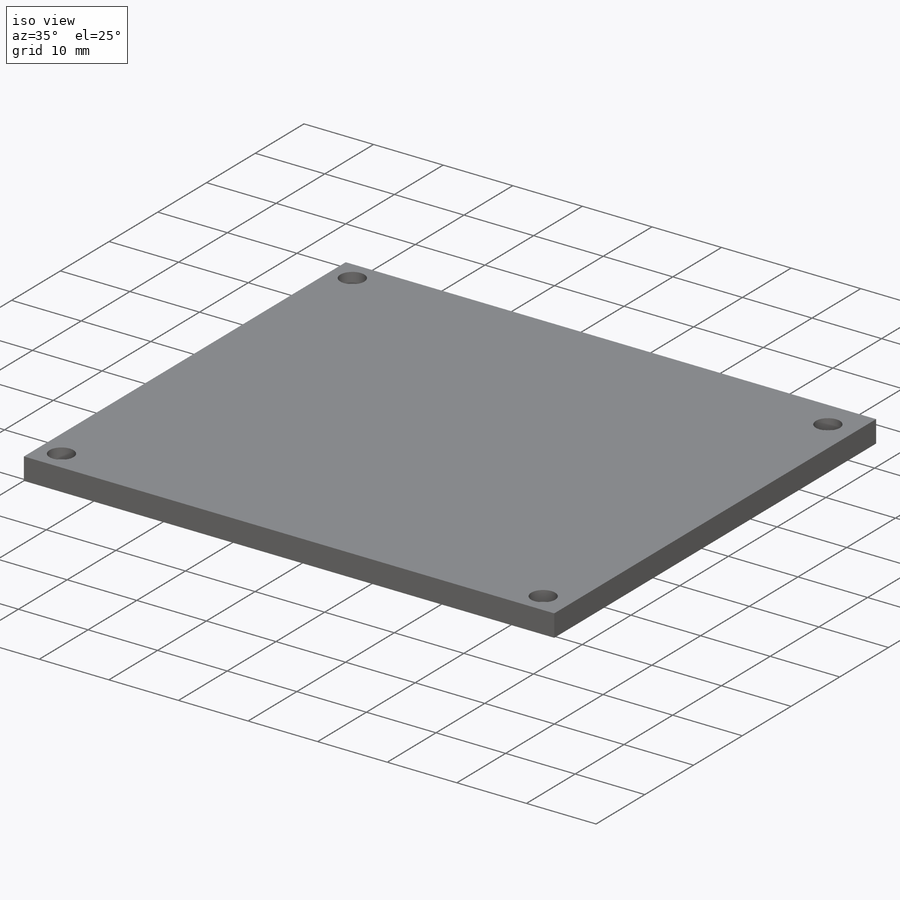
[diagram: iso view]
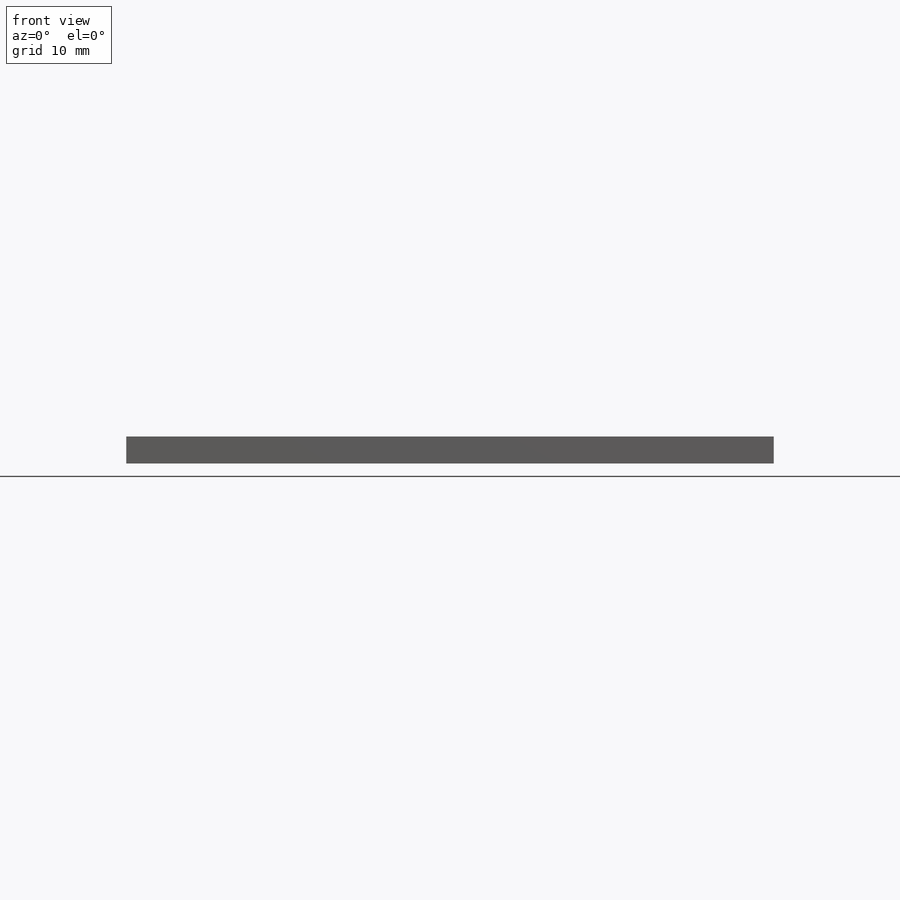
[diagram: front view]
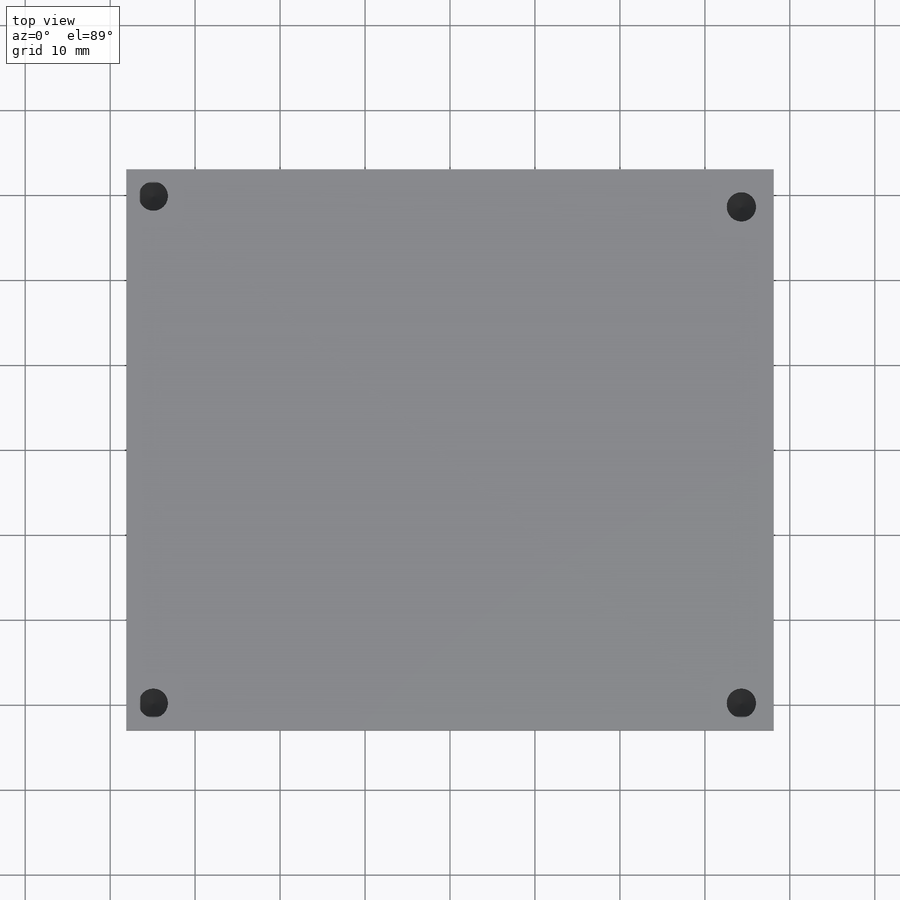
[diagram: top view]
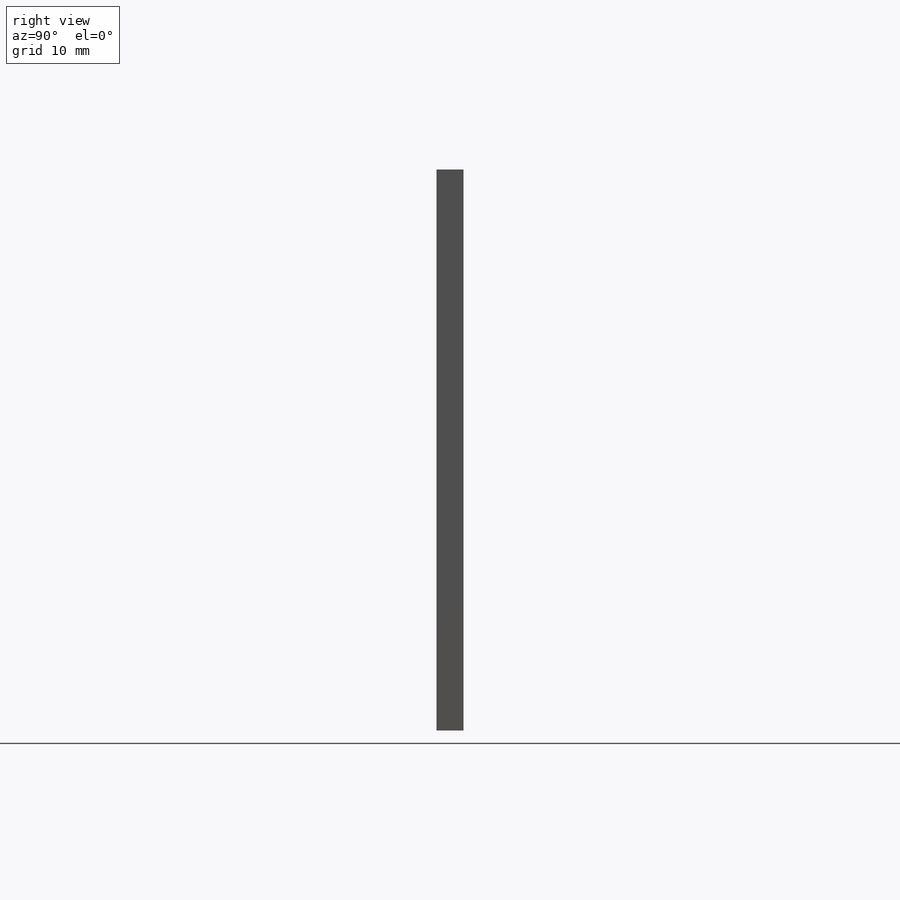
[diagram: right view]
SOLIDWORKS PART (.sldprt)
format: sldprt  version: not decoded by parser v0  size: 192,000 bytes
history: native  units: mm
features: sketch x4, material x1, extrude x1, cut_extrude x1, hole x1 (+12 scaffold rows collapsed)
feature tree (20):
  scaffold x12  (default folders/planes/origin — collapsed)
  material  "Material <not specified>"
  sketch  "Sketch1"  dims[D1=76.2mm D2=66.04mm D3=3.175mm]
  extrude  "Boss-Extrude1"  Depth=3.175mm
  sketch  "Sketch3"  dims[D1=76.2mm D2=66.04mm D3=0.254mm]
  cut_extrude  "Cut-Extrude1"  Depth=4.699mm
  hole  "#4 Clearance Hole1"  Diameter=3.4544mm Depth=10.16mm
  sketch  "Sketch7"  dims[D1=76.2mm D2=66.04mm D3=3.175mm D4=62.865mm D5=3.175mm D6=3.175mm D7=3.175mm D8=72.39mm D9=72.39mm D10=61.595mm]
  sketch  "Sketch6"  dims[hole-wizard template sketch: 47 standard entries collapsed; hole parameters kept: c15.Hole Depth=10.16mm c15.D3=~14.816244mm c15.Drill Angle=118.0deg]
decode coverage: 7 of 7 modeling features carry decoded parameters
note: ~ marks probable driven/reference dimensions
note: suppression state not decoded; provenance and decode notes live in map.json
